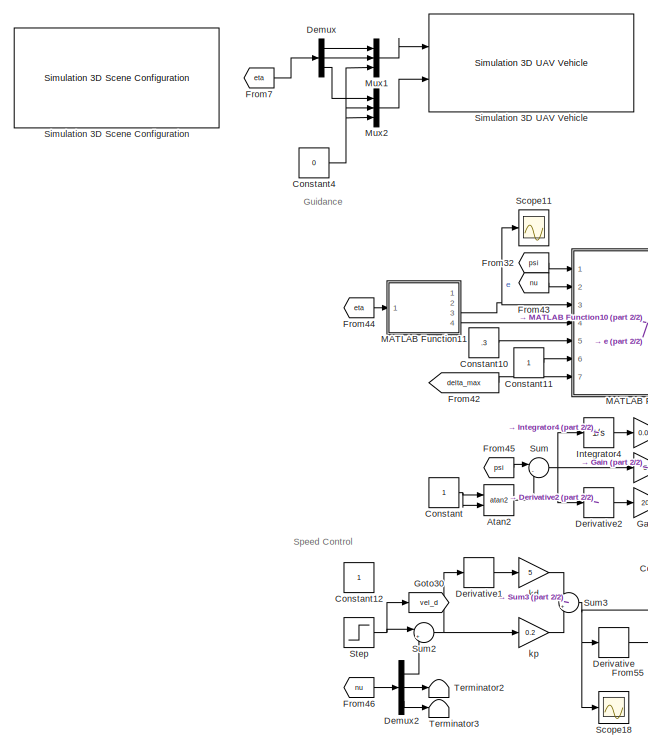
[diagram: root canvas - part 1/2, left side, full height]
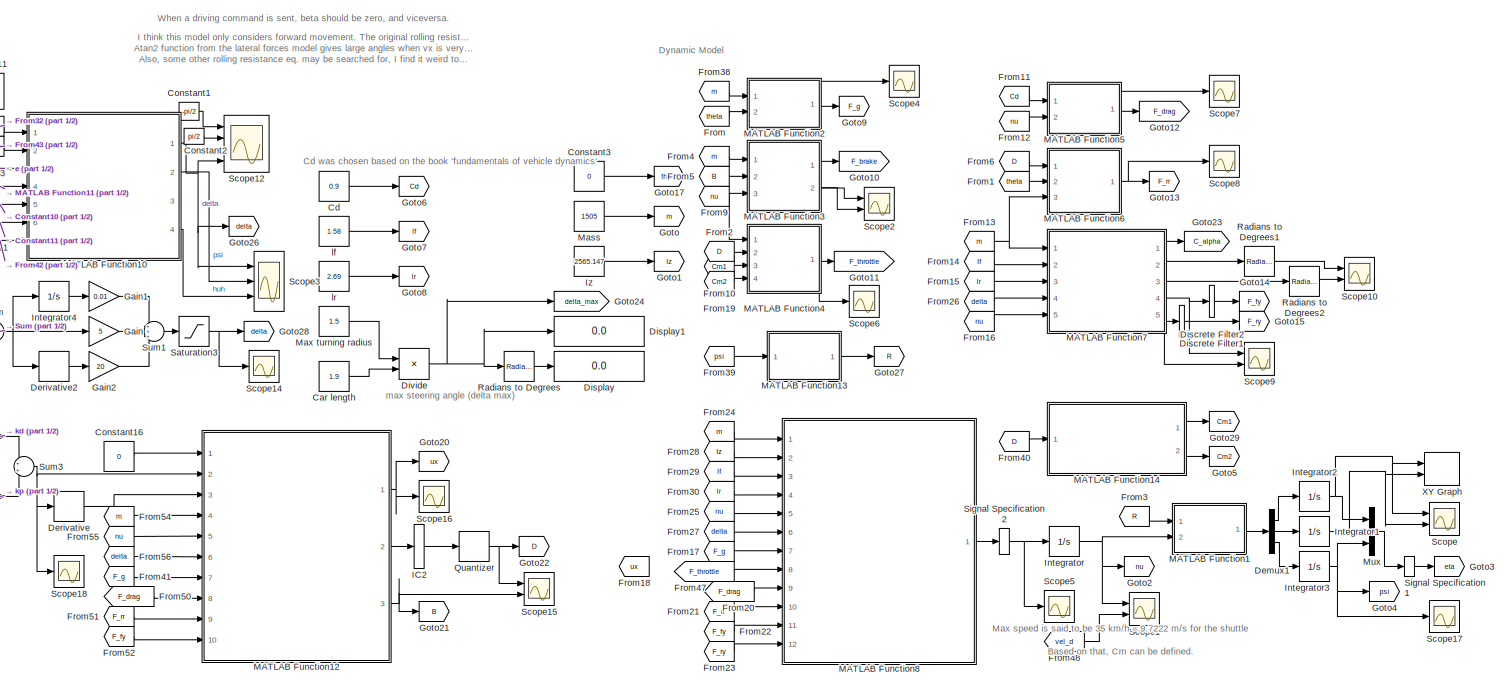
[diagram: root canvas - part 2/2, most of the canvas]
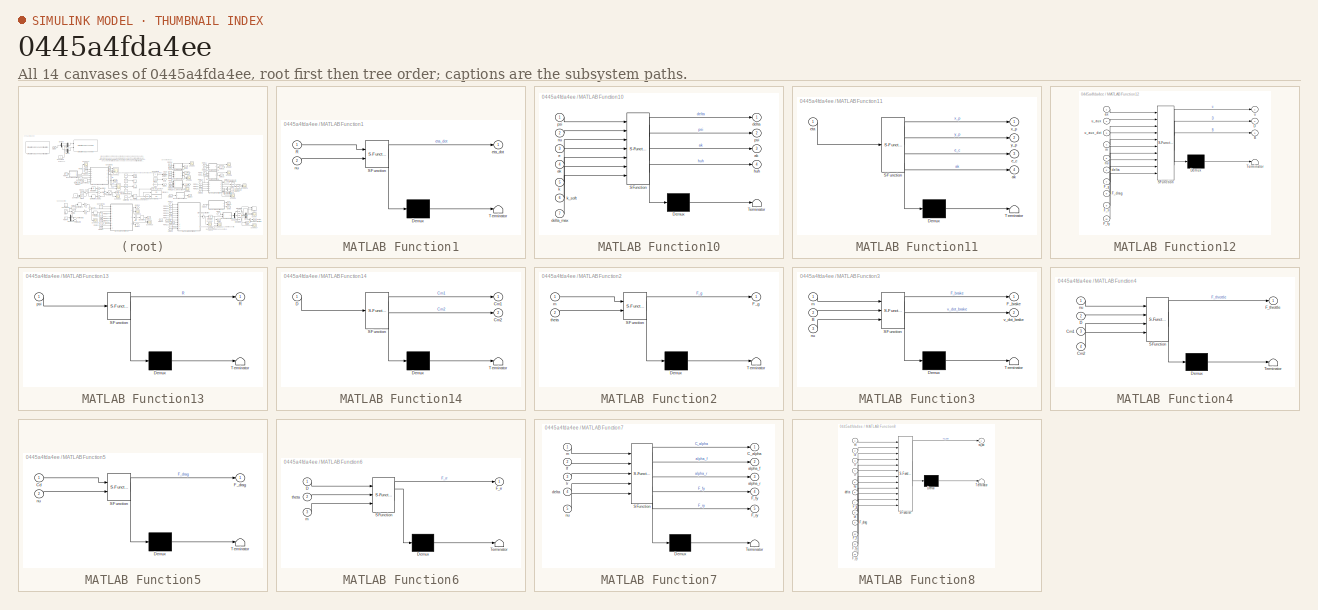
[diagram: thumbnail index - all 14 canvases of the model, root first then tree order]
MODEL slx_0445a4fda4ee
KIND model
CONFIG AbsTol = 1e-4
CONFIG EnableMultiTasking = off
CONFIG FixedStep = 0.005
CONFIG MaxStep = auto
CONFIG MinStep = auto
CONFIG RelTol = 1e-4
CONFIG SampleTimeConstraint = Unconstrained
CONFIG SolverName = ode1be
CONFIG StartTime = 0.0
CONFIG StopTime = 1000
BLOCK [Trigonometry] Atan2
  Commented = on
  Operator = atan2
  Ports = [2, 1]
BLOCK [Constant] Car length
  Value = 1.9
BLOCK [Constant] Cd
  Value = 0.9
BLOCK [Constant] Constant
  Commented = on
BLOCK [Constant] Constant1
  Value = -pi/2
BLOCK [Constant] Constant10
  Value = .3
BLOCK [Constant] Constant11
BLOCK [Constant] Constant12
  Commented = on
BLOCK [Constant] Constant16
  Value = 0
BLOCK [Constant] Constant2
  Value = pi/2
BLOCK [Constant] Constant3
  Value = 0
BLOCK [Constant] Constant4
  Commented = on
  Value = 0
BLOCK [Demux] Demux
  Commented = on
  Outputs = 3
  Ports = [1, 3]
BLOCK [Demux] Demux1
  Outputs = 3
  Ports = [1, 3]
BLOCK [Demux] Demux2
  Outputs = 3
  Ports = [1, 3]
BLOCK [Derivative] Derivative
BLOCK [Derivative] Derivative1
BLOCK [Derivative] Derivative2
  Commented = on
BLOCK [DiscreteFilter] Discrete Filter1
  Denominator = [10]
  InputPortMap = u0
  Numerator = [0.001]
  Ports = [1, 1]
BLOCK [DiscreteFilter] Discrete Filter2
  Denominator = [10]
  InputPortMap = u0
  Numerator = [0.001]
  Ports = [1, 1]
BLOCK [Display] Display
  Decimation = 1
  Ports = [1]
BLOCK [Display] Display1
  Decimation = 1
  Ports = [1]
BLOCK [Product] Divide
  Inputs = */
  Ports = [2, 1]
BLOCK [From] From
  GotoTag = theta
BLOCK [From] From1
  GotoTag = theta
BLOCK [From] From10
  GotoTag = Cm1
BLOCK [From] From11
  GotoTag = Cd
BLOCK [From] From12
  GotoTag = nu
BLOCK [From] From13
  GotoTag = m
BLOCK [From] From14
  GotoTag = lf
BLOCK [From] From15
  GotoTag = lr
BLOCK [From] From16
  GotoTag = nu
BLOCK [From] From17
  GotoTag = F_g
BLOCK [From] From18
  Commented = on
  GotoTag = ux
BLOCK [From] From19
  GotoTag = Cm2
BLOCK [From] From2
  GotoTag = D
BLOCK [From] From20
  GotoTag = F_drag
BLOCK [From] From21
  GotoTag = F_rr
BLOCK [From] From22
  GotoTag = F_fy
BLOCK [From] From23
  GotoTag = F_ry
BLOCK [From] From24
  GotoTag = m
BLOCK [From] From25
  GotoTag = nu
BLOCK [From] From26
  GotoTag = delta
BLOCK [From] From27
  GotoTag = delta
BLOCK [From] From28
  GotoTag = Iz
BLOCK [From] From29
  GotoTag = lf
BLOCK [From] From3
  GotoTag = R
BLOCK [From] From30
  GotoTag = lr
BLOCK [From] From32
  GotoTag = psi
BLOCK [From] From38
  GotoTag = m
BLOCK [From] From39
  GotoTag = psi
BLOCK [From] From4
  GotoTag = m
BLOCK [From] From40
  GotoTag = D
BLOCK [From] From41
  GotoTag = F_g
BLOCK [From] From42
  GotoTag = delta_max
BLOCK [From] From43
  GotoTag = nu
BLOCK [From] From44
  GotoTag = eta
BLOCK [From] From45
  Commented = on
  GotoTag = psi
BLOCK [From] From46
  GotoTag = nu
BLOCK [From] From47
  GotoTag = F_throttle
BLOCK [From] From48
  GotoTag = vel_d
BLOCK [From] From5
  GotoTag = B
BLOCK [From] From50
  GotoTag = F_drag
BLOCK [From] From51
  GotoTag = F_rr
BLOCK [From] From52
  GotoTag = F_fy
BLOCK [From] From54
  GotoTag = m
BLOCK [From] From55
  GotoTag = nu
BLOCK [From] From56
  GotoTag = delta
BLOCK [From] From6
  GotoTag = D
BLOCK [From] From7
  Commented = on
  GotoTag = eta
BLOCK [From] From9
  GotoTag = nu
BLOCK [Gain] Gain
  Commented = on
  Gain = 5
BLOCK [Gain] Gain1
  Commented = on
  Gain = 0.01
BLOCK [Gain] Gain2
  Commented = on
  Gain = 20
BLOCK [Goto] Goto
  GotoTag = m
BLOCK [Goto] Goto1
  GotoTag = Iz
BLOCK [Goto] Goto10
  Commented = on
  GotoTag = F_brake
BLOCK [Goto] Goto11
  GotoTag = F_throttle
BLOCK [Goto] Goto12
  GotoTag = F_drag
BLOCK [Goto] Goto13
  GotoTag = F_rr
BLOCK [Goto] Goto14
  GotoTag = F_fy
BLOCK [Goto] Goto15
  GotoTag = F_ry
BLOCK [Goto] Goto17
  GotoTag = theta
BLOCK [Goto] Goto2
  GotoTag = nu
BLOCK [Goto] Goto20
  GotoTag = ux
BLOCK [Goto] Goto21
  GotoTag = B
BLOCK [Goto] Goto22
  GotoTag = D
BLOCK [Goto] Goto23
  Commented = on
  GotoTag = C_alpha
BLOCK [Goto] Goto24
  GotoTag = delta_max
BLOCK [Goto] Goto26
  GotoTag = delta
BLOCK [Goto] Goto27
  GotoTag = R
BLOCK [Goto] Goto28
  Commented = on
  GotoTag = delta
BLOCK [Goto] Goto29
  GotoTag = Cm1
BLOCK [Goto] Goto3
  GotoTag = eta
BLOCK [Goto] Goto30
  GotoTag = vel_d
BLOCK [Goto] Goto4
  GotoTag = psi
BLOCK [Goto] Goto5
  GotoTag = Cm2
BLOCK [Goto] Goto6
  GotoTag = Cd
BLOCK [Goto] Goto7
  GotoTag = lf
BLOCK [Goto] Goto8
  GotoTag = lr
BLOCK [Goto] Goto9
  GotoTag = F_g
BLOCK [InitialCondition] IC2
  Value = 0
BLOCK [Integrator] Integrator
  Ports = [1, 1]
BLOCK [Integrator] Integrator1
  Ports = [1, 1]
BLOCK [Integrator] Integrator2
  Ports = [1, 1]
BLOCK [Integrator] Integrator3
  Ports = [1, 1]
  WrapState = on
BLOCK [Integrator] Integrator4
  Commented = on
  Ports = [1, 1]
BLOCK [Constant] Iz
  Value = 2565.147
BLOCK [SubSystem] MATLAB Function1
  ErrorFcn = Stateflow.Translate.translate
  PermitHierarchicalResolution = ExplicitOnly
  Ports = [2, 1]
  SFBlockType = MATLAB Function
  TreatAsAtomicUnit = on
BLOCK [Demux] MATLAB Function1/ Demux 
  Outputs = 1
  Ports = [1, 1]
BLOCK [S-Function] MATLAB Function1/ SFunction 
  EnableBusSupport = on
  FunctionName = sf_sfun
  PortCounts = [2 2]
  Ports = [2, 2]
  SFcnIsStateOwnerBlock = off
  SFunctionDeploymentMode = off
  Tag = Stateflow S-Function 1
BLOCK [Terminator] MATLAB Function1/ Terminator 
BLOCK [Inport] MATLAB Function1/R
BLOCK [Outport] MATLAB Function1/eta_dot
BLOCK [Inport] MATLAB Function1/nu
  Port = 2
BLOCK [SubSystem] MATLAB Function10
  ErrorFcn = Stateflow.Translate.translate
  PermitHierarchicalResolution = ExplicitOnly
  Ports = [7, 4]
  SFBlockType = MATLAB Function
  TreatAsAtomicUnit = on
BLOCK [Demux] MATLAB Function10/ Demux 
  Outputs = 1
  Ports = [1, 1]
BLOCK [S-Function] MATLAB Function10/ SFunction 
  EnableBusSupport = on
  FunctionName = sf_sfun
  PortCounts = [7 5]
  Ports = [7, 5]
  SFcnIsStateOwnerBlock = off
  SFunctionDeploymentMode = off
  Tag = Stateflow S-Function 11
BLOCK [Terminator] MATLAB Function10/ Terminator 
BLOCK [Outport] MATLAB Function10/ak
  Port = 3
BLOCK [Inport] MATLAB Function10/ak 
  Port = 4
BLOCK [Outport] MATLAB Function10/delta
BLOCK [Inport] MATLAB Function10/delta_max
  Port = 7
BLOCK [Inport] MATLAB Function10/e
  Port = 3
BLOCK [Outport] MATLAB Function10/huh
  Port = 4
BLOCK [Inport] MATLAB Function10/k
  Port = 5
BLOCK [Inport] MATLAB Function10/k_soft
  Port = 6
BLOCK [Inport] MATLAB Function10/nu
  Port = 2
BLOCK [Outport] MATLAB Function10/psi
  Port = 2
BLOCK [Inport] MATLAB Function10/psi 
BLOCK [SubSystem] MATLAB Function11
  ErrorFcn = Stateflow.Translate.translate
  PermitHierarchicalResolution = ExplicitOnly
  Ports = [1, 4]
  SFBlockType = MATLAB Function
  TreatAsAtomicUnit = on
BLOCK [Demux] MATLAB Function11/ Demux 
  Outputs = 1
  Ports = [1, 1]
BLOCK [S-Function] MATLAB Function11/ SFunction 
  EnableBusSupport = on
  FunctionName = sf_sfun
  PortCounts = [1 5]
  Ports = [1, 5]
  SFcnIsStateOwnerBlock = off
  SFunctionDeploymentMode = off
  Tag = Stateflow S-Function 12
BLOCK [Terminator] MATLAB Function11/ Terminator 
BLOCK [Outport] MATLAB Function11/ak
  Port = 4
BLOCK [Outport] MATLAB Function11/e_c
  Port = 3
BLOCK [Inport] MATLAB Function11/eta
BLOCK [Outport] MATLAB Function11/x_p
BLOCK [Outport] MATLAB Function11/y_p
  Port = 2
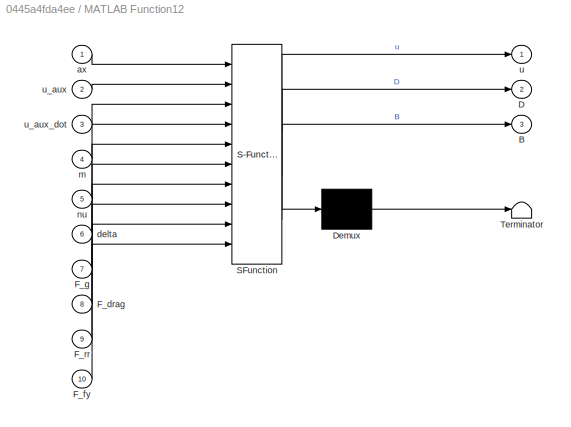
BLOCK [SubSystem] MATLAB Function12
  ErrorFcn = Stateflow.Translate.translate
  PermitHierarchicalResolution = ExplicitOnly
  Ports = [10, 3]
  SFBlockType = MATLAB Function
  TreatAsAtomicUnit = on
BLOCK [Demux] MATLAB Function12/ Demux 
  Outputs = 1
  Ports = [1, 1]
BLOCK [S-Function] MATLAB Function12/ SFunction 
  EnableBusSupport = on
  FunctionName = sf_sfun
  PortCounts = [10 4]
  Ports = [10, 4]
  SFcnIsStateOwnerBlock = off
  SFunctionDeploymentMode = off
  Tag = Stateflow S-Function 13
BLOCK [Terminator] MATLAB Function12/ Terminator 
BLOCK [Outport] MATLAB Function12/B
  Port = 3
BLOCK [Outport] MATLAB Function12/D
  Port = 2
BLOCK [Inport] MATLAB Function12/F_drag
  Port = 8
BLOCK [Inport] MATLAB Function12/F_fy
  Port = 10
BLOCK [Inport] MATLAB Function12/F_g
  Port = 7
BLOCK [Inport] MATLAB Function12/F_rr
  Port = 9
BLOCK [Inport] MATLAB Function12/ax
BLOCK [Inport] MATLAB Function12/delta
  Port = 6
BLOCK [Inport] MATLAB Function12/m
  Port = 4
BLOCK [Inport] MATLAB Function12/nu
  Port = 5
BLOCK [Outport] MATLAB Function12/u
BLOCK [Inport] MATLAB Function12/u_aux
  Port = 2
BLOCK [Inport] MATLAB Function12/u_aux_dot
  Port = 3
BLOCK [SubSystem] MATLAB Function13
  ErrorFcn = Stateflow.Translate.translate
  PermitHierarchicalResolution = ExplicitOnly
  Ports = [1, 1]
  SFBlockType = MATLAB Function
  TreatAsAtomicUnit = on
BLOCK [Demux] MATLAB Function13/ Demux 
  Outputs = 1
  Ports = [1, 1]
BLOCK [S-Function] MATLAB Function13/ SFunction 
  EnableBusSupport = on
  FunctionName = sf_sfun
  PortCounts = [1 2]
  Ports = [1, 2]
  SFcnIsStateOwnerBlock = off
  SFunctionDeploymentMode = off
  Tag = Stateflow S-Function 14
BLOCK [Terminator] MATLAB Function13/ Terminator 
BLOCK [Outport] MATLAB Function13/R
BLOCK [Inport] MATLAB Function13/psi
BLOCK [SubSystem] MATLAB Function14
  ErrorFcn = Stateflow.Translate.translate
  PermitHierarchicalResolution = ExplicitOnly
  Ports = [1, 2]
  SFBlockType = MATLAB Function
  TreatAsAtomicUnit = on
BLOCK [Demux] MATLAB Function14/ Demux 
  Outputs = 1
  Ports = [1, 1]
BLOCK [S-Function] MATLAB Function14/ SFunction 
  EnableBusSupport = on
  FunctionName = sf_sfun
  PortCounts = [1 3]
  Ports = [1, 3]
  SFcnIsStateOwnerBlock = off
  SFunctionDeploymentMode = off
  Tag = Stateflow S-Function 15
BLOCK [Terminator] MATLAB Function14/ Terminator 
BLOCK [Outport] MATLAB Function14/Cm1
BLOCK [Outport] MATLAB Function14/Cm2
  Port = 2
BLOCK [Inport] MATLAB Function14/D
BLOCK [SubSystem] MATLAB Function2
  ErrorFcn = Stateflow.Translate.translate
  PermitHierarchicalResolution = ExplicitOnly
  Ports = [2, 1]
  SFBlockType = MATLAB Function
  TreatAsAtomicUnit = on
BLOCK [Demux] MATLAB Function2/ Demux 
  Outputs = 1
  Ports = [1, 1]
BLOCK [S-Function] MATLAB Function2/ SFunction 
  EnableBusSupport = on
  FunctionName = sf_sfun
  PortCounts = [2 2]
  Ports = [2, 2]
  SFcnIsStateOwnerBlock = off
  SFunctionDeploymentMode = off
  Tag = Stateflow S-Function 3
BLOCK [Terminator] MATLAB Function2/ Terminator 
BLOCK [Outport] MATLAB Function2/F_g
BLOCK [Inport] MATLAB Function2/m
BLOCK [Inport] MATLAB Function2/theta
  Port = 2
BLOCK [SubSystem] MATLAB Function3
  ErrorFcn = Stateflow.Translate.translate
  PermitHierarchicalResolution = ExplicitOnly
  Ports = [3, 2]
  SFBlockType = MATLAB Function
  TreatAsAtomicUnit = on
BLOCK [Demux] MATLAB Function3/ Demux 
  Outputs = 1
  Ports = [1, 1]
BLOCK [S-Function] MATLAB Function3/ SFunction 
  EnableBusSupport = on
  FunctionName = sf_sfun
  PortCounts = [3 3]
  Ports = [3, 3]
  SFcnIsStateOwnerBlock = off
  SFunctionDeploymentMode = off
  Tag = Stateflow S-Function 4
BLOCK [Terminator] MATLAB Function3/ Terminator 
BLOCK [Inport] MATLAB Function3/B
  Port = 2
BLOCK [Outport] MATLAB Function3/F_brake
BLOCK [Inport] MATLAB Function3/m
BLOCK [Inport] MATLAB Function3/nu
  Port = 3
BLOCK [Outport] MATLAB Function3/v_dot_brake
  Port = 2
BLOCK [SubSystem] MATLAB Function4
  ErrorFcn = Stateflow.Translate.translate
  PermitHierarchicalResolution = ExplicitOnly
  Ports = [4, 1]
  SFBlockType = MATLAB Function
  TreatAsAtomicUnit = on
BLOCK [Demux] MATLAB Function4/ Demux 
  Outputs = 1
  Ports = [1, 1]
BLOCK [S-Function] MATLAB Function4/ SFunction 
  EnableBusSupport = on
  FunctionName = sf_sfun
  PortCounts = [4 2]
  Ports = [4, 2]
  SFcnIsStateOwnerBlock = off
  SFunctionDeploymentMode = off
  Tag = Stateflow S-Function 5
BLOCK [Terminator] MATLAB Function4/ Terminator 
BLOCK [Inport] MATLAB Function4/Cm1
  Port = 3
BLOCK [Inport] MATLAB Function4/Cm2
  Port = 4
BLOCK [Inport] MATLAB Function4/D
  Port = 2
BLOCK [Outport] MATLAB Function4/F_throttle
BLOCK [Inport] MATLAB Function4/nu
BLOCK [SubSystem] MATLAB Function5
  ErrorFcn = Stateflow.Translate.translate
  PermitHierarchicalResolution = ExplicitOnly
  Ports = [2, 1]
  SFBlockType = MATLAB Function
  TreatAsAtomicUnit = on
BLOCK [Demux] MATLAB Function5/ Demux 
  Outputs = 1
  Ports = [1, 1]
BLOCK [S-Function] MATLAB Function5/ SFunction 
  EnableBusSupport = on
  FunctionName = sf_sfun
  PortCounts = [2 2]
  Ports = [2, 2]
  SFcnIsStateOwnerBlock = off
  SFunctionDeploymentMode = off
  Tag = Stateflow S-Function 6
BLOCK [Terminator] MATLAB Function5/ Terminator 
BLOCK [Inport] MATLAB Function5/Cd
BLOCK [Outport] MATLAB Function5/F_drag
BLOCK [Inport] MATLAB Function5/nu
  Port = 2
BLOCK [SubSystem] MATLAB Function6
  ErrorFcn = Stateflow.Translate.translate
  PermitHierarchicalResolution = ExplicitOnly
  Ports = [3, 1]
  SFBlockType = MATLAB Function
  TreatAsAtomicUnit = on
BLOCK [Demux] MATLAB Function6/ Demux 
  Outputs = 1
  Ports = [1, 1]
BLOCK [S-Function] MATLAB Function6/ SFunction 
  EnableBusSupport = on
  FunctionName = sf_sfun
  PortCounts = [3 2]
  Ports = [3, 2]
  SFcnIsStateOwnerBlock = off
  SFunctionDeploymentMode = off
  Tag = Stateflow S-Function 7
BLOCK [Terminator] MATLAB Function6/ Terminator 
BLOCK [Inport] MATLAB Function6/D
BLOCK [Outport] MATLAB Function6/F_rr
BLOCK [Inport] MATLAB Function6/m
  Port = 3
BLOCK [Inport] MATLAB Function6/theta
  Port = 2
BLOCK [SubSystem] MATLAB Function7
  ErrorFcn = Stateflow.Translate.translate
  PermitHierarchicalResolution = ExplicitOnly
  Ports = [5, 5]
  SFBlockType = MATLAB Function
  TreatAsAtomicUnit = on
BLOCK [Demux] MATLAB Function7/ Demux 
  Outputs = 1
  Ports = [1, 1]
BLOCK [S-Function] MATLAB Function7/ SFunction 
  EnableBusSupport = on
  FunctionName = sf_sfun
  PortCounts = [5 6]
  Ports = [5, 6]
  SFcnIsStateOwnerBlock = off
  SFunctionDeploymentMode = off
  Tag = Stateflow S-Function 8
BLOCK [Terminator] MATLAB Function7/ Terminator 
BLOCK [Outport] MATLAB Function7/C_alpha
BLOCK [Outport] MATLAB Function7/F_fy
  Port = 4
BLOCK [Outport] MATLAB Function7/F_ry
  Port = 5
BLOCK [Outport] MATLAB Function7/alpha_f
  Port = 2
BLOCK [Outport] MATLAB Function7/alpha_r
  Port = 3
BLOCK [Inport] MATLAB Function7/delta
  Port = 4
BLOCK [Inport] MATLAB Function7/lf
  Port = 2
BLOCK [Inport] MATLAB Function7/lr
  Port = 3
BLOCK [Inport] MATLAB Function7/m
BLOCK [Inport] MATLAB Function7/nu
  Port = 5
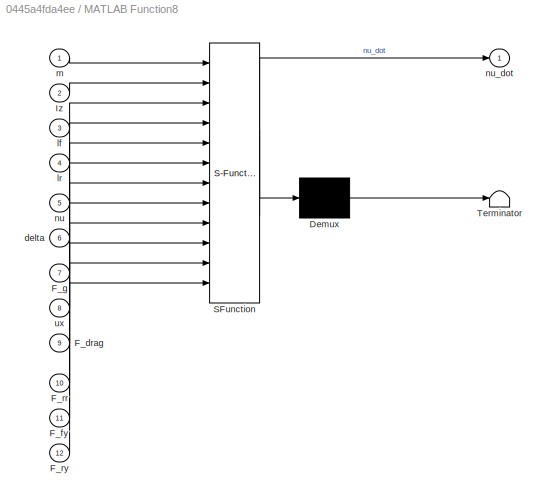
BLOCK [SubSystem] MATLAB Function8
  ErrorFcn = Stateflow.Translate.translate
  PermitHierarchicalResolution = ExplicitOnly
  Ports = [12, 1]
  SFBlockType = MATLAB Function
  TreatAsAtomicUnit = on
BLOCK [Demux] MATLAB Function8/ Demux 
  Outputs = 1
  Ports = [1, 1]
BLOCK [S-Function] MATLAB Function8/ SFunction 
  EnableBusSupport = on
  FunctionName = sf_sfun
  PortCounts = [12 2]
  Ports = [12, 2]
  SFcnIsStateOwnerBlock = off
  SFunctionDeploymentMode = off
  Tag = Stateflow S-Function 9
BLOCK [Terminator] MATLAB Function8/ Terminator 
BLOCK [Inport] MATLAB Function8/F_drag
  Port = 9
BLOCK [Inport] MATLAB Function8/F_fy
  Port = 11
BLOCK [Inport] MATLAB Function8/F_g
  Port = 7
BLOCK [Inport] MATLAB Function8/F_rr
  Port = 10
BLOCK [Inport] MATLAB Function8/F_ry
  Port = 12
BLOCK [Inport] MATLAB Function8/Iz
  Port = 2
BLOCK [Inport] MATLAB Function8/delta
  Port = 6
BLOCK [Inport] MATLAB Function8/lf
  Port = 3
BLOCK [Inport] MATLAB Function8/lr
  Port = 4
BLOCK [Inport] MATLAB Function8/m
BLOCK [Inport] MATLAB Function8/nu
  Port = 5
BLOCK [Outport] MATLAB Function8/nu_dot
BLOCK [Inport] MATLAB Function8/ux
  Port = 8
BLOCK [Constant] Mass
  Value = 1505
BLOCK [Constant] Max turning radius
  Value = 1.5
BLOCK [Mux] Mux
  DisplayOption = bar
  Inputs = 3
  Ports = [3, 1]
BLOCK [Mux] Mux1
  Commented = on
  DisplayOption = bar
  Inputs = 3
  Ports = [3, 1]
BLOCK [Mux] Mux2
  Commented = on
  DisplayOption = bar
  Inputs = 3
  Ports = [3, 1]
BLOCK [Quantizer] Quantizer
  QuantizationInterval = 1
BLOCK [Reference] Radians to Degrees  REF=simulink_extras/Transformations/Radians
to Degrees
  Ports = [1, 1]
  SourceBlock = simulink_extras/Transformations/Radians\nto Degrees
  SourceType = RadiansToDegrees
BLOCK [Reference] Radians to Degrees1  REF=simulink_extras/Transformations/Radians
to Degrees
  Ports = [1, 1]
  SourceBlock = simulink_extras/Transformations/Radians\nto Degrees
  SourceType = RadiansToDegrees
BLOCK [Reference] Radians to Degrees2  REF=simulink_extras/Transformations/Radians
to Degrees
  Ports = [1, 1]
  SourceBlock = simulink_extras/Transformations/Radians\nto Degrees
  SourceType = RadiansToDegrees
BLOCK [Saturate] Saturation3
  Commented = on
  LowerLimit = -1.054
  UpperLimit = 1.054
BLOCK [Scope] Scope
  Floating = off
  NumInputPorts = 2
  Ports = [2]
  ScopeSpecificationString = Simulink.scopes.TimeScopeBlockCfg('CurrentConfiguration', extmgr.ConfigurationSet(extmgr.Configuration('Core','General UI',true),extmgr.Configuration('Core','Source UI',true),extmgr.Configuration('Sources','WiredSimulink',true,'DataLoggingVariableName','ScopeData4'),extmgr.Configuration('Visuals','Time Domain',true,'SerializedDisplays',{struct('MinYLimReal','-82.99091','MaxYLimReal','493.2233','YL...<+1508ch>
BLOCK [Scope] Scope1
  Floating = off
  NumInputPorts = 2
  Ports = [2]
  ScopeSpecificationString = Simulink.scopes.TimeScopeBlockCfg('CurrentConfiguration', extmgr.ConfigurationSet(extmgr.Configuration('Core','General UI',true),extmgr.Configuration('Core','Source UI',true),extmgr.Configuration('Sources','WiredSimulink',true,'DataLoggingVariableName','ScopeData2'),extmgr.Configuration('Visuals','Time Domain',true,'SerializedDisplays',{struct('MinYLimReal','-0.3864','MaxYLimReal','1.15966','YLabe...<+1561ch>
BLOCK [Scope] Scope10
  Floating = off
  NumInputPorts = 2
  Ports = [2]
  ScopeSpecificationString = Simulink.scopes.TimeScopeBlockCfg('CurrentConfiguration', extmgr.ConfigurationSet(extmgr.Configuration('Core','General UI',true),extmgr.Configuration('Core','Source UI',true),extmgr.Configuration('Sources','WiredSimulink',true,'DataLoggingVariableName','ScopeData1'),extmgr.Configuration('Visuals','Time Domain',true,'SerializedDisplays',{struct('MinYLimReal','-216.76529','MaxYLimReal','192.20094','...<+1531ch>
BLOCK [Scope] Scope11
  Floating = off
  NumInputPorts = 1
  Ports = [1]
  ScopeSpecificationString = Simulink.scopes.TimeScopeBlockCfg('CurrentConfiguration', extmgr.ConfigurationSet(extmgr.Configuration('Core','General UI',true),extmgr.Configuration('Core','Source UI',true),extmgr.Configuration('Sources','WiredSimulink',true,'DataLoggingVariableName','ScopeData1'),extmgr.Configuration('Visuals','Time Domain',true,'SerializedDisplays',{struct('MinYLimReal','-490.05212','MaxYLimReal','54.45024','Y...<+1544ch>
BLOCK [Scope] Scope12
  Floating = off
  NumInputPorts = 4
  Ports = [4]
  ScopeSpecificationString = Simulink.scopes.TimeScopeBlockCfg('CurrentConfiguration', extmgr.ConfigurationSet(extmgr.Configuration('Core','General UI',true),extmgr.Configuration('Core','Source UI',true),extmgr.Configuration('Sources','WiredSimulink',true,'DataLoggingVariableName','ScopeData3'),extmgr.Configuration('Visuals','Time Domain',true,'SerializedDisplays',{struct('MinYLimReal','-3.30463','MaxYLimReal','2.11251','YLab...<+1583ch>
BLOCK [Scope] Scope14
  Commented = on
  Floating = off
  NumInputPorts = 1
  Ports = [1]
  ScopeSpecificationString = Simulink.scopes.TimeScopeBlockCfg('CurrentConfiguration', extmgr.ConfigurationSet(extmgr.Configuration('Core','General UI',true),extmgr.Configuration('Core','Source UI',true),extmgr.Configuration('Sources','WiredSimulink',true,'DataLoggingVariableName','ScopeData1'),extmgr.Configuration('Visuals','Time Domain',true,'SerializedDisplays',{struct('MinYLimReal','-0.4775','MaxYLimReal','1.22417','YLabe...<+1412ch>
BLOCK [Scope] Scope15
  Floating = off
  NumInputPorts = 2
  Ports = [2]
  ScopeSpecificationString = Simulink.scopes.TimeScopeBlockCfg('CurrentConfiguration', extmgr.ConfigurationSet(extmgr.Configuration('Core','General UI',true),extmgr.Configuration('Core','Source UI',true),extmgr.Configuration('Sources','WiredSimulink',true,'DataLoggingVariableName','ScopeData2'),extmgr.Configuration('Visuals','Time Domain',true,'SerializedDisplays',{struct('MinYLimReal','-18.33333','MaxYLimReal','50.41667','YL...<+1464ch>
BLOCK [Scope] Scope16
  Floating = off
  NumInputPorts = 1
  Ports = [1]
  ScopeSpecificationString = Simulink.scopes.TimeScopeBlockCfg('CurrentConfiguration', extmgr.ConfigurationSet(extmgr.Configuration('Core','General UI',true),extmgr.Configuration('Core','Source UI',true),extmgr.Configuration('Sources','WiredSimulink',true,'DataLoggingVariableName','ScopeData3'),extmgr.Configuration('Visuals','Time Domain',true,'SerializedDisplays',{struct('MinYLimReal','1089.25278','MaxYLimReal','1653.62778',...<+1759ch>
BLOCK [Scope] Scope17
  Floating = off
  NumInputPorts = 1
  Ports = [1]
  ScopeSpecificationString = Simulink.scopes.TimeScopeBlockCfg('CurrentConfiguration', extmgr.ConfigurationSet(extmgr.Configuration('Core','General UI',true),extmgr.Configuration('Core','Source UI',true),extmgr.Configuration('Sources','WiredSimulink',true,'DataLoggingVariableName','ScopeData5'),extmgr.Configuration('Visuals','Time Domain',true,'SerializedDisplays',{struct('MinYLimReal','-0.23626','MaxYLimReal','2.12634','YLab...<+1390ch>
BLOCK [Scope] Scope18
  Floating = off
  NumInputPorts = 1
  Ports = [1]
  ScopeSpecificationString = Simulink.scopes.TimeScopeBlockCfg('CurrentConfiguration', extmgr.ConfigurationSet(extmgr.Configuration('Core','General UI',true),extmgr.Configuration('Core','Source UI',true),extmgr.Configuration('Sources','WiredSimulink',true,'DataLoggingVariableName','ScopeData1'),extmgr.Configuration('Visuals','Time Domain',true,'SerializedDisplays',{struct('MinYLimReal','-0.03808','MaxYLimReal','0.22645','YLab...<+1728ch>
BLOCK [Scope] Scope2
  Floating = off
  NumInputPorts = 2
  Ports = [2]
  ScopeSpecificationString = Simulink.scopes.TimeScopeBlockCfg('CurrentConfiguration', extmgr.ConfigurationSet(extmgr.Configuration('Core','General UI',true),extmgr.Configuration('Core','Source UI',true),extmgr.Configuration('Sources','WiredSimulink',true,'DataLoggingVariableName','ScopeData7'),extmgr.Configuration('Visuals','Time Domain',true,'SerializedDisplays',{struct('MinYLimReal','-1.00000','MaxYLimReal','1.00000','YLab...<+1521ch>
BLOCK [Scope] Scope3
  Floating = off
  NumInputPorts = 3
  Ports = [3]
  ScopeSpecificationString = Simulink.scopes.TimeScopeBlockCfg('CurrentConfiguration', extmgr.ConfigurationSet(extmgr.Configuration('Core','General UI',true),extmgr.Configuration('Core','Source UI',true),extmgr.Configuration('Sources','WiredSimulink',true,'DataLoggingVariableName','ScopeData1'),extmgr.Configuration('Visuals','Time Domain',true,'SerializedDisplays',{struct('MinYLimReal','-1.85342','MaxYLimReal','1.08313','YLab...<+1550ch>
BLOCK [Scope] Scope4
  Floating = off
  NumInputPorts = 1
  Ports = [1]
  ScopeSpecificationString = Simulink.scopes.TimeScopeBlockCfg('CurrentConfiguration', extmgr.ConfigurationSet(extmgr.Configuration('Core','General UI',true),extmgr.Configuration('Core','Source UI',true),extmgr.Configuration('Sources','WiredSimulink',true,'DataLoggingVariableName','ScopeData2'),extmgr.Configuration('Visuals','Time Domain',true,'SerializedDisplays',{struct('MinYLimReal','-1.00000','MaxYLimReal','1.00000','YLab...<+1409ch>
BLOCK [Scope] Scope5
  Floating = off
  NumInputPorts = 1
  Ports = [1]
  ScopeSpecificationString = Simulink.scopes.TimeScopeBlockCfg('CurrentConfiguration', extmgr.ConfigurationSet(extmgr.Configuration('Core','General UI',true),extmgr.Configuration('Core','Source UI',true),extmgr.Configuration('Sources','WiredSimulink',true,'DataLoggingVariableName','ScopeData1'),extmgr.Configuration('Visuals','Time Domain',true,'SerializedDisplays',{struct('MinYLimReal','-6.07548','MaxYLimReal','46.40261','YLa...<+1554ch>
BLOCK [Scope] Scope6
  Floating = off
  NumInputPorts = 1
  Ports = [1]
  ScopeSpecificationString = Simulink.scopes.TimeScopeBlockCfg('CurrentConfiguration', extmgr.ConfigurationSet(extmgr.Configuration('Core','General UI',true),extmgr.Configuration('Core','Source UI',true),extmgr.Configuration('Sources','WiredSimulink',true,'DataLoggingVariableName','ScopeData3'),extmgr.Configuration('Visuals','Time Domain',true,'SerializedDisplays',{struct('MinYLimReal','-990.12564','MaxYLimReal','2353.7711','...<+1437ch>
BLOCK [Scope] Scope7
  Floating = off
  NumInputPorts = 1
  Ports = [1]
  ScopeSpecificationString = Simulink.scopes.TimeScopeBlockCfg('CurrentConfiguration', extmgr.ConfigurationSet(extmgr.Configuration('Core','General UI',true),extmgr.Configuration('Core','Source UI',true),extmgr.Configuration('Sources','WiredSimulink',true,'DataLoggingVariableName','ScopeData4'),extmgr.Configuration('Visuals','Time Domain',true,'SerializedDisplays',{struct('MinYLimReal','-1.00000','MaxYLimReal','1.00000','YLab...<+1415ch>
BLOCK [Scope] Scope8
  Floating = off
  NumInputPorts = 1
  Ports = [1]
  ScopeSpecificationString = Simulink.scopes.TimeScopeBlockCfg('CurrentConfiguration', extmgr.ConfigurationSet(extmgr.Configuration('Core','General UI',true),extmgr.Configuration('Core','Source UI',true),extmgr.Configuration('Sources','WiredSimulink',true,'DataLoggingVariableName','ScopeData5'),extmgr.Configuration('Visuals','Time Domain',true,'SerializedDisplays',{struct('MinYLimReal','145.69028','MaxYLimReal','2145.69028','...<+1462ch>
BLOCK [Scope] Scope9
  Floating = off
  NumInputPorts = 2
  Ports = [2]
  ScopeSpecificationString = Simulink.scopes.TimeScopeBlockCfg('CurrentConfiguration', extmgr.ConfigurationSet(extmgr.Configuration('Core','General UI',true),extmgr.Configuration('Core','Source UI',true),extmgr.Configuration('Sources','WiredSimulink',true,'DataLoggingVariableName','ScopeData6'),extmgr.Configuration('Visuals','Time Domain',true,'SerializedDisplays',{struct('MinYLimReal','-1.00000','MaxYLimReal','1.00000','YLab...<+1505ch>
BLOCK [SignalSpecification] Signal Specification1
BLOCK [SignalSpecification] Signal Specification2
  Dimensions = 3
BLOCK [Reference] Simulation 3D Scene Configuration  REF=sim3dlib/Simulation 3D Scene Configuration
  Commented = on
  Ports = []
  Priority = 0
  SourceBlock = sim3dlib/Simulation 3D Scene Configuration
  SourceType = Simulation 3D Scene Configuration
BLOCK [Reference] Simulation 3D UAV Vehicle  REF=uavsim3dlib/Simulation 3D UAV Vehicle
  Commented = on
  Ports = [2]
  Priority = -1
  SourceBlock = uavsim3dlib/Simulation 3D UAV Vehicle
  SourceType = Simulation 3D UAV Vehicle
BLOCK [Step] Step
  After = .5
  Before = .5
  SampleTime = 0
  Time = 0
BLOCK [Sum] Sum
  Commented = on
  Inputs = |-+
  Ports = [2, 1]
BLOCK [Sum] Sum1
  Commented = on
  Inputs = +++
  Ports = [3, 1]
BLOCK [Sum] Sum2
  Inputs = |+-
  Ports = [2, 1]
BLOCK [Sum] Sum3
  Ports = [2, 1]
BLOCK [Terminator] Terminator2
BLOCK [Terminator] Terminator3
BLOCK [Record] XY Graph
  CompatibilityTag = XY
  FileSettingsInternal = {"entries":[{"content":{"excelSettings":{"content":{},"type":"Streamout.ExcelSettings"}},"type":"Streamout.FileSettingStorage","uuid":""}],"packageUris":["http:\/\/schema.mathworks.com\/mf0\/streamout_blocks\/R2020a"],"version":"1.0"}
  Layout = [1 1]
  Ports = [2]
  SignalsInternal = {"entries":[{"content":{"signals":[{"content":{"blockPath":[],"dimensions":[1],"domain":"","lineColor":"#edb120","plots":[1],"port":1,"signalID":1411,"signalName":"Integrator2"},"type":"RecordBlkView.Signal","uuid":""},{"content":{"blockPath":[],"dimensions":[1],"domain":"","lineColor":"#7e2f8e","plots":[1],"port":2,"signalID":1414,"signalName":"Integrator1"},"type":"RecordBlkView.Signal","uuid":"...<+148ch>
  VisualizationBindings = {"xyplotplugin":{"info":[{"series":[{"bindingParametersList":[{"parameter":"X-Axis","signalID":1411,"signalName":"Integrator2"},{"parameter":"Y-Axis","signalID":1414,"signalName":"Integrator1"}],"seriesID":36310}],"subplotID":1}]}}
BLOCK [Gain] kd
  Gain = 5
BLOCK [Gain] kp
  Gain = 0.2
BLOCK [Constant] lf
  Value = 1.58
BLOCK [Constant] lr
  Value = 2.69
ANNOTATION (root): Cd was chosen based on the book 'fundamentals of vehicle dynamics'
ANNOTATION (root): Dynamic Model
ANNOTATION (root): Guidance
ANNOTATION (root): I think this model only considers forward movement. The original rolling resistance, drag and brake does not work well when reverse is wanted; something else should be made in the future. Atan2 function from the lateral forces model gives large angles when vx is very close to zero, which gives in turn very large forces; current solution gives better results, but something else may be used to adres...<+164ch>
ANNOTATION (root): Max speed is said to be 35 km/h = 9.7222 m/s for the shuttle Based on that, Cm can be defined.
ANNOTATION (root): Speed Control
ANNOTATION (root): When a driving command is sent, beta should be zero, and viceversa.
ANNOTATION (root): max steering angle (delta max)
LINE Atan2:1 -> Sum:2
LINE Car length:1 -> Divide:2
LINE Cd:1 -> Goto6:1
LINE Constant10:1 -> MATLAB Function10:5
LINE Constant11:1 -> MATLAB Function10:6
LINE Constant16:1 -> MATLAB Function12:1
LINE Constant1:1 -> Scope12:1
LINE Constant2:1 -> Scope12:2
LINE Constant3:1 -> Goto17:1
NET Constant4:1 -> Mux1:3, Mux2:2, Mux2:3
NET Constant:1 -> Atan2:1, Atan2:2
LINE Demux1:1 -> Integrator2:1
LINE Demux1:2 -> Integrator1:1
LINE Demux1:3 -> Integrator3:1
LINE Demux2:1 -> Sum2:2
LINE Demux2:2 -> Terminator2:1
LINE Demux2:3 -> Terminator3:1
LINE Demux:1 -> Mux1:1
LINE Demux:2 -> Mux1:2
LINE Demux:3 -> Mux2:1
LINE Derivative1:1 -> kd:1
LINE Derivative2:1 -> Gain2:1
LINE Derivative:1 -> MATLAB Function12:3
LINE Discrete Filter1:1 -> Goto15:1
LINE Discrete Filter2:1 -> Goto14:1
NET Divide:1 -> Display1:1, Goto24:1, Radians to Degrees:1
LINE From10:1 -> MATLAB Function4:3
LINE From11:1 -> MATLAB Function5:1
LINE From12:1 -> MATLAB Function5:2
NET From13:1 -> MATLAB Function6:3, MATLAB Function7:1
LINE From14:1 -> MATLAB Function7:2
LINE From15:1 -> MATLAB Function7:3
LINE From16:1 -> MATLAB Function7:5
LINE From17:1 -> MATLAB Function8:7
LINE From19:1 -> MATLAB Function4:4
LINE From1:1 -> MATLAB Function6:2
LINE From20:1 -> MATLAB Function8:9
LINE From21:1 -> MATLAB Function8:10
LINE From22:1 -> MATLAB Function8:11
LINE From23:1 -> MATLAB Function8:12
LINE From24:1 -> MATLAB Function8:1
LINE From25:1 -> MATLAB Function8:5
LINE From26:1 -> MATLAB Function7:4
LINE From27:1 -> MATLAB Function8:6
LINE From28:1 -> MATLAB Function8:2
LINE From29:1 -> MATLAB Function8:3
LINE From2:1 -> MATLAB Function4:2
LINE From30:1 -> MATLAB Function8:4
LINE From32:1 -> MATLAB Function10:1
LINE From38:1 -> MATLAB Function2:1
LINE From39:1 -> MATLAB Function13:1
LINE From3:1 -> MATLAB Function1:1
LINE From40:1 -> MATLAB Function14:1
LINE From41:1 -> MATLAB Function12:7
LINE From42:1 -> MATLAB Function10:7
LINE From43:1 -> MATLAB Function10:2
LINE From44:1 -> MATLAB Function11:1
LINE From45:1 -> Sum:1
LINE From46:1 -> Demux2:1
LINE From47:1 -> MATLAB Function8:8
LINE From48:1 -> Scope1:2
LINE From4:1 -> MATLAB Function3:1
LINE From50:1 -> MATLAB Function12:8
LINE From51:1 -> MATLAB Function12:9
LINE From52:1 -> MATLAB Function12:10
LINE From54:1 -> MATLAB Function12:4
LINE From55:1 -> MATLAB Function12:5
LINE From56:1 -> MATLAB Function12:6
LINE From5:1 -> MATLAB Function3:2
LINE From6:1 -> MATLAB Function6:1
LINE From7:1 -> Demux:1
NET From9:1 -> MATLAB Function3:3, MATLAB Function4:1
LINE From:1 -> MATLAB Function2:2
LINE Gain1:1 -> Sum1:1
LINE Gain2:1 -> Sum1:3
LINE Gain:1 -> Sum1:2
LINE IC2:1 -> Quantizer:1
NET Integrator1:1 -> Mux:2, Scope:2, XY Graph:2
NET Integrator2:1 -> Mux:1, Scope:1, XY Graph:1
NET Integrator3:1 -> Goto4:1, Mux:3, Scope17:1
LINE Integrator4:1 -> Gain1:1
NET Integrator:1 -> Goto2:1, MATLAB Function1:2, Scope1:1
LINE Iz:1 -> Goto1:1
NET MATLAB Function10:1 -> Goto26:1, Scope12:4, Scope3:1
LINE MATLAB Function10:2 -> Scope3:2
LINE MATLAB Function10:4 -> Scope3:3
NET MATLAB Function11:3 -> MATLAB Function10:3, Scope11:1
LINE MATLAB Function11:4 -> MATLAB Function10:4
NET MATLAB Function12:1 -> Goto20:1, Scope16:1
LINE MATLAB Function12:2 -> IC2:1
NET MATLAB Function12:3 -> Goto21:1, Scope15:2
LINE MATLAB Function13:1 -> Goto27:1
LINE MATLAB Function14:1 -> Goto29:1
LINE MATLAB Function14:2 -> Goto5:1
LINE MATLAB Function1:1 -> Demux1:1
NET MATLAB Function2:1 -> Goto9:1, Scope4:1
NET MATLAB Function3:1 -> Goto10:1, Scope2:1
LINE MATLAB Function3:2 -> Scope2:2
NET MATLAB Function4:1 -> Goto11:1, Scope6:1
NET MATLAB Function5:1 -> Goto12:1, Scope7:1
NET MATLAB Function6:1 -> Goto13:1, Scope8:1
LINE MATLAB Function7:1 -> Goto23:1
LINE MATLAB Function7:2 -> Radians to Degrees1:1
LINE MATLAB Function7:3 -> Radians to Degrees2:1
NET MATLAB Function7:4 -> Discrete Filter2:1, Scope9:1
NET MATLAB Function7:5 -> Discrete Filter1:1, Scope9:2
LINE MATLAB Function8:1 -> Signal Specification2:1
LINE Mass:1 -> Goto:1
LINE Max turning radius:1 -> Divide:1
LINE Mux1:1 -> Simulation 3D UAV Vehicle:1
LINE Mux2:1 -> Simulation 3D UAV Vehicle:2
LINE Mux:1 -> Signal Specification1:1
NET Quantizer:1 -> Goto22:1, Scope15:1
LINE Radians to Degrees1:1 -> Scope10:1
LINE Radians to Degrees2:1 -> Scope10:2
LINE Radians to Degrees:1 -> Display:1
NET Saturation3:1 -> Goto28:1, Scope14:1
LINE Signal Specification1:1 -> Goto3:1
NET Signal Specification2:1 -> Integrator:1, Scope5:1
NET Step:1 -> Goto30:1, Sum2:1
LINE Sum1:1 -> Saturation3:1
NET Sum2:1 -> Derivative1:1, kp:1
NET Sum3:1 -> Derivative:1, MATLAB Function12:2, Scope18:1
NET Sum:1 -> Derivative2:1, Gain:1, Integrator4:1
LINE kd:1 -> Sum3:1
LINE kp:1 -> Sum3:2
LINE lf:1 -> Goto7:1
LINE lr:1 -> Goto8:1
note: NET lines group one-source signal fan-out (src -> all destinations, sorted); 1:1 wires keep LINE
CHART MATLAB Function8 states=1 transitions=1
  STATE_LABEL 'eML_blk_kernel()'
  STATE_LABEL 'SCRIPT:\nfunction nu_dot = model_functions(m,Iz,lf,lr,nu,delta,F_g,ux, F_drag,F_rr,F_fy,F_ry)\n    vx = nu(1);\n    vy = nu(2);\n    r = nu(3);\n    \n    fx =  -(F_drag + F_rr + F_g + F_fy*sin(delta) - m*vy*r)/m;\n    fy = (F_ry + F_fy*cos(delta) - m*vx*r)/m;\n    fz = (F_fy*lf*cos(delta) - F_ry*lr)/Iz;\n\n    %ux = F_brake + F_throttle;\n    uy = 0;\n    uz = 0;\n\n    gx = 1/m;\n    gy = 0;\n    gz = 0;\n\n    f...<+95ch>'
CHART MATLAB Function10 states=1 transitions=1
  STATE_LABEL 'eML_blk_kernel()'
  STATE_LABEL 'SCRIPT:\nfunction [delta, psi, ak, huh]= Stanley_Controller_pro(psi,nu,e,ak,k,k_soft,delta_max)\n    v = norm(nu(1:2));\n    %v = nu(1);\n\n    %delta = -(psi - ak+ atan2(k*e,k_soft + v));\n    delta = abs(psi-ak)+atan2(k*e,k_soft + v);\n    huh = atan2(k*e,k_soft + v);\n\n    if(delta > delta_max)\n        delta = delta_max;\n    elseif(delta < -delta_max)\n        delta = -delta_max;\n    end\n    %delta = 0;...<+4ch>'
CHART MATLAB Function11 states=1 transitions=1
  STATE_LABEL 'eML_blk_kernel()'
  STATE_LABEL 'SCRIPT:\nfunction [x_p,y_p,e_c,ak] = path(eta)\n    path = [0 0;\n             0.00001  100];\n\n    e_x = path(2,1) - path(1,1);\n    e_y = path(2,2) - path(1,2);\n\n    ak = atan2(e_y,e_x);\n    \n    % Slope of path\n    m1 = e_y/e_x;\n    b = path(2,2) - m1*path(2,1);\n\n    % Slope of normal line to the path\n    m2 = -1/m1;\n    c = eta(2) - m2*eta(1);\n\n    % Obtain intersection point\n    x_p = (c - b)/(m1 ...<+166ch>'
CHART MATLAB Function12 states=1 transitions=1
  STATE_LABEL 'eML_blk_kernel()'
  STATE_LABEL 'SCRIPT:\nfunction [u,D,B]= model_functions(ax,u_aux,u_aux_dot,m,nu,delta,F_g,F_drag,F_rr,F_fy)\n    vx = nu(1);\n    vy = nu(2);\n    r = nu(3);\n\n    B = 0;\n    fx =  -(F_drag + F_rr + F_g + F_fy*sin(delta) - m*vy*r)/m;\n    %gx = 1/m;\n    u = m*(-fx + ax + u_aux);\n\n    % Next condition was set so the vehicle does not move backwards when\n    % the throttle force is less than the resistance\n    if(F_rr ...<+512ch>'
CHART MATLAB Function13 states=1 transitions=1
  STATE_LABEL 'eML_blk_kernel()'
  STATE_LABEL 'SCRIPT:\nfunction R = Rotation(psi)\n    R = [cos(psi) sin(psi);\n        -sin(psi) cos(psi)];\nend'
CHART MATLAB Function14 states=1 transitions=1
  STATE_LABEL 'eML_blk_kernel()'
  STATE_LABEL 'SCRIPT:\nfunction [Cm1,Cm2]= Motor_Constants(D)\n\n    Cm1 = 0.0113*D^2-2.1552*D+142.22;\n    Cm2 = 0.0028*D^2-0.4629*D+22.399;\n\n    %Cm1 = 120.78*exp(-0.013*D);\n    %Cm2 = 16.762*exp(-0.019*D);\n\n    %Cm1 = -0.7333*D + 102.59;\n    %Cm2 = -0.1125*D + 12.631;\n\n    %Cm1 = -43.63*log(D)+234.3;\n    %Cm2 = -6.903*log(D)+33.706;\n'
CHART MATLAB Function1 states=1 transitions=1
  STATE_LABEL 'eML_blk_kernel()'
  STATE_LABEL 'SCRIPT:\nfunction eta_dot = kinematics(R, nu)\n    eta_dot = [0;0;nu(3)];\n    eta_dot(1:2) = R*nu(1:2);\nend'
CHART MATLAB Function2 states=1 transitions=1
  STATE_LABEL 'eML_blk_kernel()'
  STATE_LABEL 'SCRIPT:\nfunction F_g = Gravity(m,theta)\n    % theta : vehicle pitch angle\n    g = 9.81;\n    \n    F_g = m*g*sin(theta);\nend'
CHART MATLAB Function3 states=1 transitions=1
  STATE_LABEL 'eML_blk_kernel()'
  STATE_LABEL "SCRIPT:\nfunction [F_brake,v_dot_brake]= Brake(m,B,nu)\n    % B : pedal brake command (or position) [0, 1]\n    \n    vx = nu(1);\n    % If this condition is not set, the simulation breaks as velocities\n    % tend to infinity\n    if(vx > 0)\n        % I don't think the original model consider reverse motion nor\n        % standstill situations.\n        % Moreover, this model could lend excesive forces. A...<+353ch>"
CHART MATLAB Function4 states=1 transitions=1
  STATE_LABEL 'eML_blk_kernel()'
  STATE_LABEL 'SCRIPT:\nfunction F_throttle = Throttle(nu,D,Cm1,Cm2)\n    % Cm1 : motor model constant 1\n    % Cm2 : motor model constant 2\n    % D : throttle command (or position) [0, 255]\n\n    vx = nu(1);\n\n    offset = -0.0769*D^2 + 8.1533*D + 1038.7;\n    %step 90 -> 1150\n    %step 67 -> 1240\n    %step 45 -> 1250\n\n    if D>0\n       F_throttle = (Cm1 - Cm2*vx)*D - offset;\n    else\n        F_throttle = 0;\n    end\n...<+61ch>'
CHART MATLAB Function5 states=1 transitions=1
  STATE_LABEL 'eML_blk_kernel()'
  STATE_LABEL 'SCRIPT:\nfunction F_drag = Drag(Cd,nu)\n    % Cm : motor model constant\n    % D : throttle command (or position) [0, 1]\n    % ro : air density\n    % A : transversal area\n    % Cd : drag coefficient\n\n    vx = nu(1);\n    ro = 1.225;\n    A = 3.426;\n    \n    F_drag = 0.5*ro*A*Cd*vx^2;\nend'
CHART MATLAB Function6 states=1 transitions=1
  STATE_LABEL 'eML_blk_kernel()'
  STATE_LABEL 'SCRIPT:\nfunction F_rr = Rolling_Resistance(D,theta,m)\n    % fr : rolling resistance coefficient\n    \n    fr = 0.0776;\n    %fr = 0.015; % For passenger cars, from fundamentals of vehicle dynamics book\n\n    % This resistance force does does not consider standstill\n    % situations. If the vehicle is at rest, the car moves backwards\n    \n    F_rr = m*9.81*fr*cos(theta); % From fundamentals of vehicle...<+234ch>'
CHART MATLAB Function7 states=1 transitions=1
  STATE_LABEL 'eML_blk_kernel()'
  STATE_LABEL 'SCRIPT:\nfunction [C_alpha,alpha_f,alpha_r,F_fy,F_ry]= Lateral_Forces(m,lf,lr,delta,nu)\n    % delta : steering angle\n    % theta_vf : front tire velocity angle\n    % theta_vr : rear tire velocity angle\n    % C_alpha : tire cornering stiffness (assuming being equal for all tires)\n\n    vx = nu(1);\n    vy = nu(2);\n    r = nu(3);\n\n    % C alpha calculated from this webpage: https://www.mchenrysoftware....<+674ch>'
CHART  states=0 transitions=0
CHART  states=0 transitions=0
CHART  states=0 transitions=0
CHART  states=0 transitions=0
CHART  states=0 transitions=0
CHART  states=0 transitions=0
CHART  states=0 transitions=0
CHART  states=0 transitions=0
CHART  states=0 transitions=0
CHART  states=0 transitions=0
CHART  states=0 transitions=0
CHART  states=0 transitions=0
CHART  states=0 transitions=0
